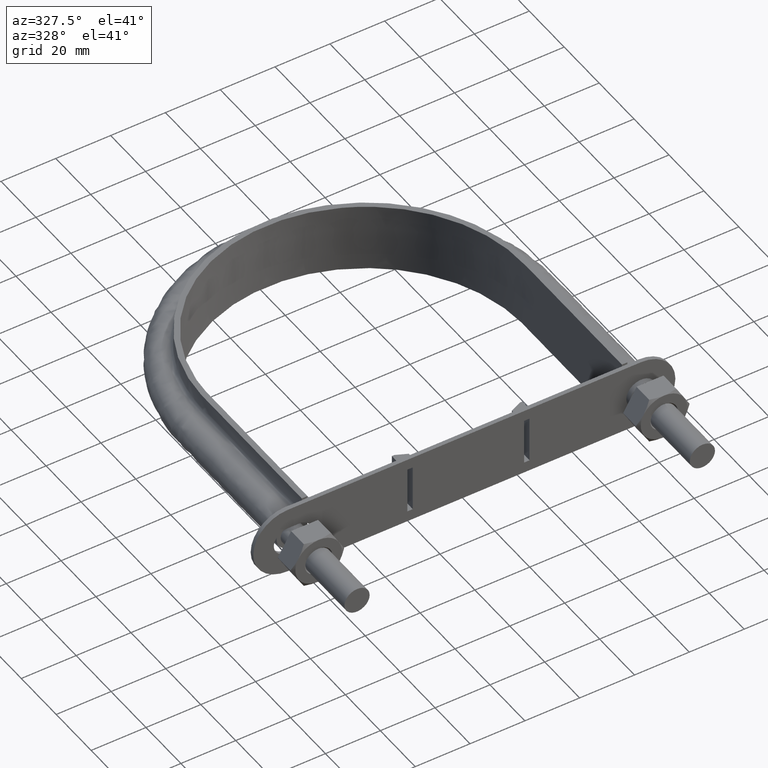
[diagram: clean part render]
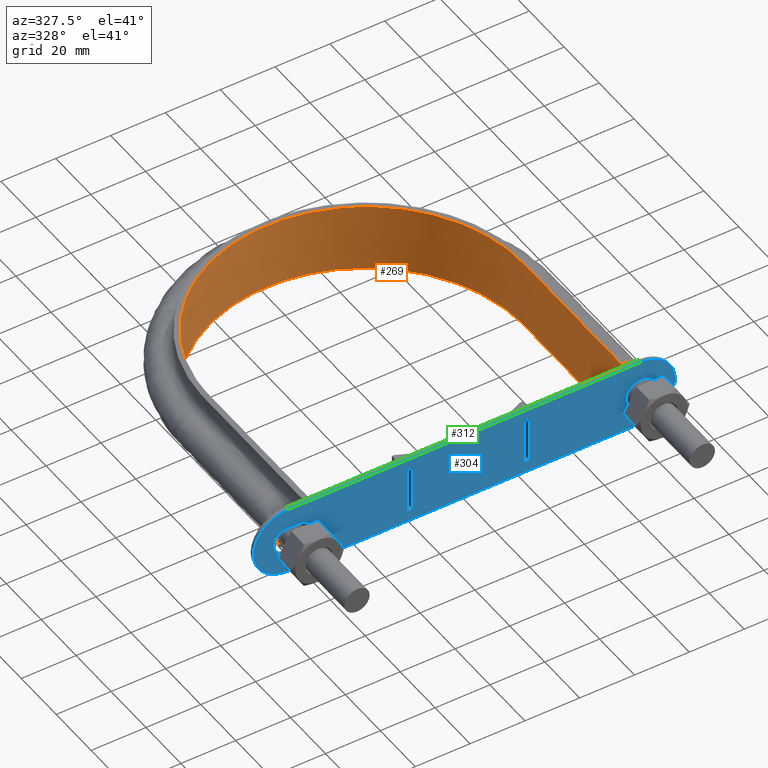
[diagram: same view with three faces highlighted in distinct colors, each labeled with its STEP entity id]
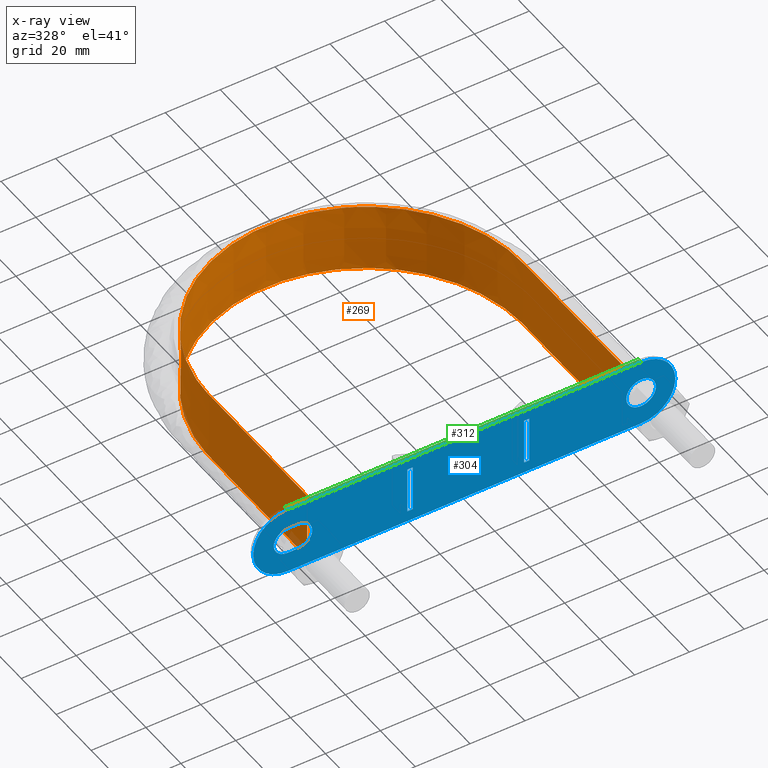
[diagram: x-ray of the same camera — body ghosted, the three highlighted faces saturated]
A machine part, auxiliary view with three faces highlighted in distinct colors.
The next image is the same camera in x-ray (body ghosted, the three faces saturated) — at least one of them is partly hidden behind the body in this view.
Their STEP definitions:

[orange] entity #269 — the highlighted face is a SurfaceOfExtrusion surface.
#269 = ADVANCED_FACE( '', ( #384 ), #385, .T. );
#384 = FACE_OUTER_BOUND( '', #636, .T. );
#385 = SURFACE_OF_LINEAR_EXTRUSION( '', #637, #638 );
#636 = EDGE_LOOP( '', ( #1553, #1554, #1555, #1556 ) );
#637 = B_SPLINE_CURVE_WITH_KNOTS( '', 3, ( #1557, #1558, #1559, #1560, #1561, #1562, #1563, #1564, #1565, #1566, #1567, #1568, #1569, #1570, #1571, #1572 ), .UNSPECIFIED., .F., .F., ( 4, 3, 1, 1, 1, 1, 1, 1, 3, 4 ), ( -8.93693843594010, -8.00000000000000, -7.00000000000000, -6.00000000000000, -5.00000000000000, -4.00000000000000, -3.00000000000000, -2.00000000000000, -1.00000000000000, -0.0630615640599001 ), .UNSPECIFIED. );
#638 = VECTOR( '', #1573, 1000.00000000000 );
#1553 = ORIENTED_EDGE( '', *, *, #2359, .T. );
#1554 = ORIENTED_EDGE( '', *, *, #2367, .T. );
#1555 = ORIENTED_EDGE( '', *, *, #2364, .F. );
#1556 = ORIENTED_EDGE( '', *, *, #2368, .T. );
#1557 = CARTESIAN_POINT( '', ( 57.4000000000000, 37.3000000000000, 12.5000100000910 ) );
#1558 = CARTESIAN_POINT( '', ( 57.4000000000000, 56.0700000000000, 12.5000100000910 ) );
#1559 = CARTESIAN_POINT( '', ( 57.4000000000000, 74.8399999999999, 12.5000100000910 ) );
#1560 = CARTESIAN_POINT( '', ( 57.4000000000000, 93.6100000000000, 12.5000100000910 ) );
#1561 = CARTESIAN_POINT( '', ( 57.4000000000000, 102.180493203978, 12.5000100000910 ) );
#1562 = CARTESIAN_POINT( '', ( 53.4810424094545, 119.371852668646, 12.5000100000910 ) );
#1563 = CARTESIAN_POINT( '', ( 37.0100296725023, 140.017335605858, 12.5000100000910 ) );
#1564 = CARTESIAN_POINT( '', ( 13.2087266606841, 151.481567469912, 12.5000100000910 ) );
#1565 = CARTESIAN_POINT( '', ( -13.2087266606841, 151.481567469912, 12.5000100000910 ) );
#1566 = CARTESIAN_POINT( '', ( -37.0100296725023, 140.017335605858, 12.5000100000910 ) );
#1567 = CARTESIAN_POINT( '', ( -53.4810424094545, 119.371852668646, 12.5000100000910 ) );
#1568 = CARTESIAN_POINT( '', ( -57.4000000000000, 102.180493203978, 12.5000100000910 ) );
#1569 = CARTESIAN_POINT( '', ( -57.4000000000000, 93.6100000000000, 12.5000100000910 ) );
#1570 = CARTESIAN_POINT( '', ( -57.4000000000000, 74.8400000000000, 12.5000100000910 ) );
#1571 = CARTESIAN_POINT( '', ( -57.4000000000000, 56.0700000000000, 12.5000100000910 ) );
#1572 = CARTESIAN_POINT( '', ( -57.4000000000000, 37.3000000000000, 12.5000100000910 ) );
#1573 = DIRECTION( '', ( 0.000000000000000, 0.000000000000000, -1.00000000000000 ) );
#2359 = EDGE_CURVE( '', #2597, #2598, #2599, .T. );
#2364 = EDGE_CURVE( '', #2605, #2608, #2609, .T. );
#2367 = EDGE_CURVE( '', #2598, #2608, #2613, .F. );
#2368 = EDGE_CURVE( '', #2605, #2597, #2614, .T. );
#2597 = VERTEX_POINT( '', #2991 );
#2598 = VERTEX_POINT( '', #2992 );
#2599 = LINE( '', #2993, #2994 );
#2605 = VERTEX_POINT( '', #3032 );
#2608 = VERTEX_POINT( '', #3036 );
#2609 = LINE( '', #3037, #3038 );
#2613 = B_SPLINE_CURVE_WITH_KNOTS( '', 3, ( #3073, #3074, #3075, #3076, #3077, #3078, #3079, #3080, #3081, #3082, #3083, #3084, #3085, #3086, #3087, #3088 ), .UNSPECIFIED., .F., .F., ( 4, 3, 1, 1, 1, 1, 1, 1, 3, 4 ), ( -8.93693843594010, -8.00000000000000, -7.00000000000000, -6.00000000000000, -5.00000000000000, -4.00000000000000, -3.00000000000000, -2.00000000000000, -1.00000000000000, -0.0630615640599001 ), .UNSPECIFIED. );
#2614 = B_SPLINE_CURVE_WITH_KNOTS( '', 3, ( #3089, #3090, #3091, #3092, #3093, #3094, #3095, #3096, #3097, #3098, #3099, #3100, #3101, #3102, #3103, #3104, #3105, #3106, #3107, #3108, #3109, #3110, #3111, #3112, #3113, #3114, #3115, #3116, #3117, #3118, #3119, #3120, #3121, #3122, #3123, #3124, #3125, #3126, #3127, #3128, #3129, #3130, #3131, #3132, #3133, #3134, #3135, #3136, #3137, #3138, #3139, #3140, #3141, #3142, #3143, #3144, #3145, #3146, #3147, #3148, #3149, #3150, #3151, #3152, #3153, #3154, #3155, #3156, #3157, #3158, #3159, #3160, #3161, #3162, #3163, #3164, #3165, #3166, #3167, #3168, #3169, #3170, #3171, #3172, #3173, #3174, #3175, #3176 ), .UNSPECIFIED., .F., .F., ( 4, 1, 2, 2, 2, 2, 2, 2, 2, 2, 2, 2, 2, 2, 2, 2, 2, 2, 2, 2, 2, 2, 2, 2, 2, 2, 2, 2, 2, 2, 2, 2, 2, 2, 2, 2, 2, 2, 2, 2, 2, 2, 2, 1, 4 ), ( 6.93889390390723E-018, 0.0368006591004078, 0.0552009886506117, 0.0575010298443872, 0.0598010710381627, 0.0644011534257136, 0.0736013182008154, 0.0782014005883663, 0.0805014417821417, 0.0828014829759172, 0.0920016477510191, 0.0966017301385700, 0.0989017713323454, 0.101201812526121, 0.110401977301223, 0.115002059688774, 0.117302100882549, 0.119602142076324, 0.128802306851426, 0.133402389238977, 0.135702430432752, 0.138002471626528, 0.147202636401630, 0.156402801176731, 0.158702842370507, 0.161002883564282, 0.165602965951833, 0.174803130726935, 0.177103171920710, 0.179403213114486, 0.184003295502037, 0.193203460277138, 0.195503501470914, 0.197803542664689, 0.202403625052240, 0.211603789827342, 0.213903831021117, 0.216203872214893, 0.220803954602443, 0.230004119377545, 0.234604201765096, 0.236904242958871, 0.239204284152646, 0.257604613702849, 0.294405272803255 ), .UNSPECIFIED. );
#2991 = CARTESIAN_POINT( '', ( -57.4000000000000, 37.3000000000000, 12.5000000000000 ) );
#2992 = CARTESIAN_POINT( '', ( -57.4000000000000, 37.3000000000000, -12.5000000000000 ) );
#2993 = CARTESIAN_POINT( '', ( -57.4000000000000, 37.3000000000000, 12.5000100000910 ) );
#2994 = VECTOR( '', #3869, 1000.00000000000 );
#3032 = CARTESIAN_POINT( '', ( 57.4000000000000, 37.3000000000000, 12.5000000000000 ) );
#3036 = CARTESIAN_POINT( '', ( 57.4000000000000, 37.3000000000000, -12.5000000000000 ) );
#3037 = CARTESIAN_POINT( '', ( 57.4000000000000, 37.3000000000000, 12.5000100000910 ) );
#3038 = VECTOR( '', #3873, 1000.00000000000 );
#3073 = CARTESIAN_POINT( '', ( 57.4000000000000, 37.3000000000000, -12.5000000000000 ) );
#3074 = CARTESIAN_POINT( '', ( 57.4000000000000, 56.0700000000000, -12.5000000000000 ) );
#3075 = CARTESIAN_POINT( '', ( 57.4000000000000, 74.8399999999999, -12.5000000000000 ) );
#3076 = CARTESIAN_POINT( '', ( 57.4000000000000, 93.6100000000000, -12.5000000000000 ) );
#3077 = CARTESIAN_POINT( '', ( 57.4000000000000, 102.180493203978, -12.5000000000000 ) );
#3078 = CARTESIAN_POINT( '', ( 53.4810424094545, 119.371852668646, -12.5000000000000 ) );
#3079 = CARTESIAN_POINT( '', ( 37.0100296725023, 140.017335605858, -12.5000000000000 ) );
#3080 = CARTESIAN_POINT( '', ( 13.2087266606841, 151.481567469912, -12.5000000000000 ) );
#3081 = CARTESIAN_POINT( '', ( -13.2087266606841, 151.481567469912, -12.5000000000000 ) );
#3082 = CARTESIAN_POINT( '', ( -37.0100296725023, 140.017335605858, -12.5000000000000 ) );
#3083 = CARTESIAN_POINT( '', ( -53.4810424094545, 119.371852668646, -12.5000000000000 ) );
#3084 = CARTESIAN_POINT( '', ( -57.4000000000000, 102.180493203978, -12.5000000000000 ) );
#3085 = CARTESIAN_POINT( '', ( -57.4000000000000, 93.6100000000000, -12.5000000000000 ) );
#3086 = CARTESIAN_POINT( '', ( -57.4000000000000, 74.8400000000000, -12.5000000000000 ) );
#3087 = CARTESIAN_POINT( '', ( -57.4000000000000, 56.0700000000000, -12.5000000000000 ) );
#3088 = CARTESIAN_POINT( '', ( -57.4000000000000, 37.3000000000000, -12.5000000000000 ) );
#3089 = CARTESIAN_POINT( '', ( 57.4000000000000, 37.3000000000000, 12.5000000000000 ) );
#3090 = CARTESIAN_POINT( '', ( 57.4000000000000, 49.5668971504807, 12.5000000000000 ) );
#3091 = CARTESIAN_POINT( '', ( 57.3999999999999, 67.9672428762017, 12.5000000000000 ) );
#3092 = CARTESIAN_POINT( '', ( 57.4000000000000, 86.3675886019228, 12.5000000000000 ) );
#3093 = CARTESIAN_POINT( '', ( 57.4000000000000, 93.2677182490682, 12.5000000000000 ) );
#3094 = CARTESIAN_POINT( '', ( 57.4036066457801, 94.0344041032519, 12.5000000000000 ) );
#3095 = CARTESIAN_POINT( '', ( 57.3712056389476, 95.5677232845277, 12.5000000000000 ) );
#3096 = CARTESIAN_POINT( '', ( 57.3393359788147, 96.3353753045869, 12.5000000000000 ) );
#3097 = CARTESIAN_POINT( '', ( 57.1976234100830, 98.6306634699641, 12.5000000000000 ) );
#3098 = CARTESIAN_POINT( '', ( 57.0421967518527, 100.147180453960, 12.5000000000000 ) );
#3099 = CARTESIAN_POINT( '', ( 56.4004013757545, 104.657352705709, 12.5000000000000 ) );
#3100 = CARTESIAN_POINT( '', ( 55.7399883057787, 107.611959318388, 12.5000000000000 ) );
#3101 = CARTESIAN_POINT( '', ( 54.4013047063944, 111.965777471156, 12.5000000000000 ) );
#3102 = CARTESIAN_POINT( '', ( 53.8966972928596, 113.403952132018, 12.5000000000000 ) );
#3103 = CARTESIAN_POINT( '', ( 53.0487681131459, 115.540793277909, 12.5000000000000 ) );
#3104 = CARTESIAN_POINT( '', ( 52.7511260023257, 116.248939019186, 12.5000000000000 ) );
#3105 = CARTESIAN_POINT( '', ( 52.1306487491250, 117.645579267383, 12.5000000000000 ) );
#3106 = CARTESIAN_POINT( '', ( 51.8071932048134, 118.335643312284, 12.5000000000000 ) );
#3107 = CARTESIAN_POINT( '', ( 50.1243560027938, 121.745011154793, 12.5000000000000 ) );
#3108 = CARTESIAN_POINT( '', ( 48.5704537429598, 124.342805722192, 12.5000000000000 ) );
#3109 = CARTESIAN_POINT( '', ( 45.9378759805746, 128.051022440817, 12.5000000000000 ) );
#3110 = CARTESIAN_POINT( '', ( 45.0097482486539, 129.255485755391, 12.5000000000000 ) );
#3111 = CARTESIAN_POINT( '', ( 43.5399840512469, 131.013724230868, 12.5000000000000 ) );
#3112 = CARTESIAN_POINT( '', ( 43.0360401908087, 131.592882580464, 12.5000000000000 ) );
#3113 = CARTESIAN_POINT( '', ( 42.0071679355061, 132.728730541199, 12.5000000000000 ) );
#3114 = CARTESIAN_POINT( '', ( 41.4830799771193, 133.284602734684, 12.5000000000000 ) );
#3115 = CARTESIAN_POINT( '', ( 38.8150256208344, 136.004509636062, 12.5000000000000 ) );
#3116 = CARTESIAN_POINT( '', ( 36.5289375337687, 137.991083678086, 12.5000000000000 ) );
#3117 = CARTESIAN_POINT( '', ( 32.8725465474706, 140.687177301449, 12.5000000000000 ) );
#3118 = CARTESIAN_POINT( '', ( 31.6159998625506, 141.538738914915, 12.5000000000000 ) );
#3119 = CARTESIAN_POINT( '', ( 29.6741600235064, 142.744883379300, 12.5000000000000 ) );
#3120 = CARTESIAN_POINT( '', ( 29.0173621705765, 143.135046972002, 12.5000000000000 ) );
#3121 = CARTESIAN_POINT( '', ( 27.6844813094559, 143.891293691475, 12.5000000000000 ) );
#3122 = CARTESIAN_POINT( '', ( 27.0092860879620, 144.256786401143, 12.5000000000000 ) );
#3123 = CARTESIAN_POINT( '', ( 23.6148955512580, 146.008321558919, 12.5000000000000 ) );
#3124 = CARTESIAN_POINT( '', ( 20.8188839208597, 147.181221130253, 12.5000000000000 ) );
#3125 = CARTESIAN_POINT( '', ( 16.5063575914378, 148.604430974850, 12.5000000000000 ) );
#3126 = CARTESIAN_POINT( '', ( 15.0489724833801, 149.022456876127, 12.5000000000000 ) );
#3127 = CARTESIAN_POINT( '', ( 12.8322199583375, 149.562489310091, 12.5000000000000 ) );
#3128 = CARTESIAN_POINT( '', ( 12.0881682606315, 149.727937467103, 12.5000000000000 ) );
#3129 = CARTESIAN_POINT( '', ( 10.5896803128533, 150.029378956679, 12.5000000000000 ) );
#3130 = CARTESIAN_POINT( '', ( 9.83354107507632, 150.165648447287, 12.5000000000000 ) );
#3131 = CARTESIAN_POINT( '', ( 6.05033946504659, 150.768951449387, 12.5000000000000 ) );
#3132 = CARTESIAN_POINT( '', ( 3.02331961872741, 151.004107282322, 12.5000000000000 ) );
#3133 = CARTESIAN_POINT( '', ( -3.03159229771714, 151.003674706656, 12.5000000000000 ) );
#3134 = CARTESIAN_POINT( '', ( -6.05948435362853, 150.768093969407, 12.5000000000000 ) );
#3135 = CARTESIAN_POINT( '', ( -9.84492369258710, 150.163681704028, 12.5000000000000 ) );
#3136 = CARTESIAN_POINT( '', ( -10.6002721762768, 150.027389123451, 12.5000000000000 ) );
#3137 = CARTESIAN_POINT( '', ( -12.0978185021848, 149.725853405146, 12.5000000000000 ) );
#3138 = CARTESIAN_POINT( '', ( -12.8414452252184, 149.560367013092, 12.5000000000000 ) );
#3139 = CARTESIAN_POINT( '', ( -15.0570550081489, 149.020235378931, 12.5000000000000 ) );
#3140 = CARTESIAN_POINT( '', ( -16.5138535706967, 148.602163316093, 12.5000000000000 ) );
#3141 = CARTESIAN_POINT( '', ( -20.8250913381980, 147.178758755140, 12.5000000000000 ) );
#3142 = CARTESIAN_POINT( '', ( -23.6208691240754, 146.005657850112, 12.5000000000000 ) );
#3143 = CARTESIAN_POINT( '', ( -27.0156329102763, 144.253406103617, 12.5000000000000 ) );
#3144 = CARTESIAN_POINT( '', ( -27.6910147520963, 143.887696886022, 12.5000000000000 ) );
#3145 = CARTESIAN_POINT( '', ( -29.0234575114926, 143.131477440111, 12.5000000000000 ) );
#3146 = CARTESIAN_POINT( '', ( -29.6800585802789, 142.741324040592, 12.5000000000000 ) );
#3147 = CARTESIAN_POINT( '', ( -31.6213689725300, 141.535193660409, 12.5000000000000 ) );
#3148 = CARTESIAN_POINT( '', ( -32.8776437603807, 140.683619457022, 12.5000000000000 ) );
#3149 = CARTESIAN_POINT( '', ( -36.5334220827475, 137.987374398227, 12.5000000000000 ) );
#3150 = CARTESIAN_POINT( '', ( -38.8193751731555, 136.000549631674, 12.5000000000000 ) );
#3151 = CARTESIAN_POINT( '', ( -41.4874843976751, 133.279993585617, 12.5000000000000 ) );
#3152 = CARTESIAN_POINT( '', ( -42.0115944312470, 132.723974530570, 12.5000000000000 ) );
#3153 = CARTESIAN_POINT( '', ( -43.0405299781914, 131.587794110931, 12.5000000000000 ) );
#3154 = CARTESIAN_POINT( '', ( -43.5442393747026, 131.008765306377, 12.5000000000000 ) );
#3155 = CARTESIAN_POINT( '', ( -45.0135877457228, 129.250627800788, 12.5000000000000 ) );
#3156 = CARTESIAN_POINT( '', ( -45.9415210243652, 128.046162448528, 12.5000000000000 ) );
#3157 = CARTESIAN_POINT( '', ( -48.5736917716305, 124.337694282144, 12.5000000000000 ) );
#3158 = CARTESIAN_POINT( '', ( -50.1275589688898, 121.739408642437, 12.5000000000000 ) );
#3159 = CARTESIAN_POINT( '', ( -51.8104283189419, 118.328866111214, 12.5000000000000 ) );
#3160 = CARTESIAN_POINT( '', ( -52.1338941649286, 117.638538815899, 12.5000000000000 ) );
#3161 = CARTESIAN_POINT( '', ( -52.7543954652597, 116.241312252746, 12.5000000000000 ) );
#3162 = CARTESIAN_POINT( '', ( -53.0520667494114, 115.532782600104, 12.5000000000000 ) );
#3163 = CARTESIAN_POINT( '', ( -53.8993605656226, 113.396631283103, 12.5000000000000 ) );
#3164 = CARTESIAN_POINT( '', ( -54.4036525659498, 111.958777453083, 12.5000000000000 ) );
#3165 = CARTESIAN_POINT( '', ( -55.7415838846628, 107.605493588584, 12.5000000000000 ) );
#3166 = CARTESIAN_POINT( '', ( -56.4017548199479, 104.650676383386, 12.5000000000000 ) );
#3167 = CARTESIAN_POINT( '', ( -57.0431251208450, 100.139233624254, 12.5000000000000 ) );
#3168 = CARTESIAN_POINT( '', ( -57.1984001624354, 98.6221331309984, 12.5000000000000 ) );
#3169 = CARTESIAN_POINT( '', ( -57.3398068241163, 96.3257053568890, 12.5000000000000 ) );
#3170 = CARTESIAN_POINT( '', ( -57.3715266179354, 95.5584033825671, 12.5000000000000 ) );
#3171 = CARTESIAN_POINT( '', ( -57.4036727794918, 94.0253337577368, 12.5000000000000 ) );
#3172 = CARTESIAN_POINT( '', ( -57.4000000000000, 93.2587698558454, 12.5000000000000 ) );
#3173 = CARTESIAN_POINT( '', ( -57.4000000000000, 86.3597434352617, 12.5000000000000 ) );
#3174 = CARTESIAN_POINT( '', ( -57.4000000000000, 67.9623396470387, 12.5000000000000 ) );
#3175 = CARTESIAN_POINT( '', ( -57.4000000000000, 49.5649358588155, 12.5000000000000 ) );
#3176 = CARTESIAN_POINT( '', ( -57.4000000000000, 37.3000000000000, 12.5000000000000 ) );
#3869 = DIRECTION( '', ( 0.000000000000000, 0.000000000000000, -1.00000000000000 ) );
#3873 = DIRECTION( '', ( 0.000000000000000, 0.000000000000000, -1.00000000000000 ) );

[blue] entity #304 — the highlighted planar face has unit normal (0, 1, 0).
#304 = ADVANCED_FACE( '', ( #465, #466, #467, #468, #469 ), #470, .F. );
#465 = FACE_BOUND( '', #1372, .T. );
#466 = FACE_BOUND( '', #1373, .T. );
#467 = FACE_OUTER_BOUND( '', #1374, .T. );
#468 = FACE_BOUND( '', #1375, .T. );
#469 = FACE_BOUND( '', #1376, .T. );
#470 = PLANE( '', #1377 );
#1372 = EDGE_LOOP( '', ( #1797, #1798, #1799, #1800 ) );
#1373 = EDGE_LOOP( '', ( #1801, #1802, #1803, #1804 ) );
#1374 = EDGE_LOOP( '', ( #1805, #1806, #1807, #1808, #1809, #1810 ) );
#1375 = EDGE_LOOP( '', ( #1811 ) );
#1376 = EDGE_LOOP( '', ( #1812, #1813, #1814, #1815 ) );
#1377 = AXIS2_PLACEMENT_3D( '', #1816, #1817, #1818 );
#1797 = ORIENTED_EDGE( '', *, *, #2430, .F. );
#1798 = ORIENTED_EDGE( '', *, *, #2443, .T. );
#1799 = ORIENTED_EDGE( '', *, *, #2444, .T. );
#1800 = ORIENTED_EDGE( '', *, *, #2434, .F. );
#1801 = ORIENTED_EDGE( '', *, *, #2445, .F. );
#1802 = ORIENTED_EDGE( '', *, *, #2446, .F. );
#1803 = ORIENTED_EDGE( '', *, *, #2447, .T. );
#1804 = ORIENTED_EDGE( '', *, *, #2448, .T. );
#1805 = ORIENTED_EDGE( '', *, *, #2425, .F. );
#1806 = ORIENTED_EDGE( '', *, *, #2449, .F. );
#1807 = ORIENTED_EDGE( '', *, *, #2450, .F. );
#1808 = ORIENTED_EDGE( '', *, *, #2451, .F. );
#1809 = ORIENTED_EDGE( '', *, *, #2452, .F. );
#1810 = ORIENTED_EDGE( '', *, *, #2453, .F. );
#1811 = ORIENTED_EDGE( '', *, *, #2454, .T. );
#1812 = ORIENTED_EDGE( '', *, *, #2440, .F. );
#1813 = ORIENTED_EDGE( '', *, *, #2442, .F. );
#1814 = ORIENTED_EDGE( '', *, *, #2455, .F. );
#1815 = ORIENTED_EDGE( '', *, *, #2437, .F. );
#1816 = CARTESIAN_POINT( '', ( -66.0000000000000, 35.1000000000000, 6.64906155238804E-010 ) );
#1817 = DIRECTION( '', ( 2.51087312473002E-018, 1.00000000000000, 5.34725563500670E-016 ) );
#1818 = DIRECTION( '', ( 1.00743302589043E-011, -5.34725563500696E-016, 1.00000000000000 ) );
#2425 = EDGE_CURVE( '', #2709, #2711, #2712, .T. );
#2430 = EDGE_CURVE( '', #2719, #2715, #2721, .T. );
#2434 = EDGE_CURVE( '', #2715, #2727, #2728, .T. );
#2437 = EDGE_CURVE( '', #2730, #2732, #2733, .T. );
#2440 = EDGE_CURVE( '', #2735, #2730, #2737, .T. );
#2442 = EDGE_CURVE( '', #2738, #2735, #2740, .T. );
#2443 = EDGE_CURVE( '', #2719, #2741, #2742, .T. );
#2444 = EDGE_CURVE( '', #2741, #2727, #2743, .T. );
#2445 = EDGE_CURVE( '', #2744, #2745, #2746, .T. );
#2446 = EDGE_CURVE( '', #2747, #2744, #2748, .T. );
#2447 = EDGE_CURVE( '', #2747, #2749, #2750, .T. );
#2448 = EDGE_CURVE( '', #2749, #2745, #2751, .T. );
#2449 = EDGE_CURVE( '', #2752, #2709, #2753, .T. );
#2450 = EDGE_CURVE( '', #2754, #2752, #2755, .T. );
#2451 = EDGE_CURVE( '', #2756, #2754, #2757, .T. );
#2452 = EDGE_CURVE( '', #2758, #2756, #2759, .T. );
#2453 = EDGE_CURVE( '', #2711, #2758, #2760, .T. );
#2454 = EDGE_CURVE( '', #2761, #2761, #2762, .T. );
#2455 = EDGE_CURVE( '', #2732, #2738, #2763, .T. );
#2709 = VERTEX_POINT( '', #3355 );
#2711 = VERTEX_POINT( '', #3358 );
#2712 = CIRCLE( '', #3359, 12.5000000000000 );
#2715 = VERTEX_POINT( '', #3363 );
#2719 = VERTEX_POINT( '', #3369 );
#2721 = LINE( '', #3372, #3373 );
#2727 = VERTEX_POINT( '', #3382 );
#2728 = LINE( '', #3383, #3384 );
#2730 = VERTEX_POINT( '', #3387 );
#2732 = VERTEX_POINT( '', #3390 );
#2733 = LINE( '', #3391, #3392 );
#2735 = VERTEX_POINT( '', #3395 );
#2737 = CIRCLE( '', #3398, 5.00000000000000 );
#2738 = VERTEX_POINT( '', #3399 );
#2740 = LINE( '', #3402, #3403 );
#2741 = VERTEX_POINT( '', #3404 );
#2742 = LINE( '', #3405, #3406 );
#2743 = LINE( '', #3407, #3408 );
#2744 = VERTEX_POINT( '', #3409 );
#2745 = VERTEX_POINT( '', #3410 );
#2746 = LINE( '', #3411, #3412 );
#2747 = VERTEX_POINT( '', #3413 );
#2748 = LINE( '', #3414, #3415 );
#2749 = VERTEX_POINT( '', #3416 );
#2750 = LINE( '', #3417, #3418 );
#2751 = LINE( '', #3419, #3420 );
#2752 = VERTEX_POINT( '', #3421 );
#2753 = CIRCLE( '', #3422, 12.5000000000000 );
#2754 = VERTEX_POINT( '', #3423 );
#2755 = LINE( '', #3424, #3425 );
#2756 = VERTEX_POINT( '', #3426 );
#2757 = CIRCLE( '', #3427, 12.5000000000000 );
#2758 = VERTEX_POINT( '', #3428 );
#2759 = CIRCLE( '', #3429, 12.5000000000000 );
#2760 = LINE( '', #3430, #3431 );
#2761 = VERTEX_POINT( '', #3432 );
#2762 = CIRCLE( '', #3433, 5.40000000000000 );
#2763 = CIRCLE( '', #3434, 5.00000000000000 );
#3355 = CARTESIAN_POINT( '', ( -78.5000000000000, 35.1000000000000, 7.90838752922060E-010 ) );
#3358 = CARTESIAN_POINT( '', ( -65.9999999998741, 35.1000000000000, 12.5000000006649 ) );
#3359 = AXIS2_PLACEMENT_3D( '', #3969, #3970, #3971 );
#3363 = CARTESIAN_POINT( '', ( 22.3000000000856, 35.1000000000000, 8.49999999977534 ) );
#3369 = CARTESIAN_POINT( '', ( 22.2999999999144, 35.1000000000000, -8.50000000022466 ) );
#3372 = CARTESIAN_POINT( '', ( 22.2999999999144, 35.1000000000000, -8.50000000022466 ) );
#3373 = VECTOR( '', #3976, 1000.00000000000 );
#3382 = CARTESIAN_POINT( '', ( 20.3000000000856, 35.1000000000000, 8.49999999979549 ) );
#3383 = CARTESIAN_POINT( '', ( 22.3000000000856, 35.1000000000000, 8.49999999977534 ) );
#3384 = VECTOR( '', #3980, 1000.00000000000 );
#3387 = CARTESIAN_POINT( '', ( -66.0000000000504, 35.0999984999318, -4.99999999933509 ) );
#3390 = CARTESIAN_POINT( '', ( -62.0000000000504, 35.0999984999318, -4.99999999937539 ) );
#3391 = CARTESIAN_POINT( '', ( -66.0000000000504, 35.0999984999318, -4.99999999933509 ) );
#3392 = VECTOR( '', #3983, 1000.00000000000 );
#3395 = CARTESIAN_POINT( '', ( -65.9999999999496, 35.0999984999318, 5.00000000066491 ) );
#3398 = AXIS2_PLACEMENT_3D( '', #3986, #3987, #3988 );
#3399 = CARTESIAN_POINT( '', ( -61.9999999999496, 35.0999984999318, 5.00000000062461 ) );
#3402 = CARTESIAN_POINT( '', ( -61.9999999999496, 35.0999984999318, 5.00000000062461 ) );
#3403 = VECTOR( '', #3990, 1000.00000000000 );
#3404 = CARTESIAN_POINT( '', ( 20.2999999999144, 35.1000000000000, -8.50000000020451 ) );
#3405 = CARTESIAN_POINT( '', ( 22.2999999999144, 35.1000000000000, -8.50000000022466 ) );
#3406 = VECTOR( '', #3991, 1000.00000000000 );
#3407 = CARTESIAN_POINT( '', ( 20.2999999999144, 35.1000000000000, -8.50000000020451 ) );
#3408 = VECTOR( '', #3992, 1000.00000000000 );
#3409 = CARTESIAN_POINT( '', ( -20.3000000000857, 35.1000000000000, -8.49999999979549 ) );
#3410 = CARTESIAN_POINT( '', ( -20.2999999999144, 35.1000000000000, 8.50000000020451 ) );
#3411 = CARTESIAN_POINT( '', ( -20.3000000000857, 35.1000000000000, -8.49999999979549 ) );
#3412 = VECTOR( '', #3993, 1000.00000000000 );
#3413 = CARTESIAN_POINT( '', ( -22.3000000000857, 35.1000000000000, -8.49999999977534 ) );
#3414 = CARTESIAN_POINT( '', ( -22.3000000000856, 35.1000000000000, -8.49999999977534 ) );
#3415 = VECTOR( '', #3994, 1000.00000000000 );
#3416 = CARTESIAN_POINT( '', ( -22.2999999999144, 35.1000000000000, 8.50000000022466 ) );
#3417 = CARTESIAN_POINT( '', ( -22.3000000000857, 35.1000000000000, -8.49999999977534 ) );
#3418 = VECTOR( '', #3995, 1000.00000000000 );
#3419 = CARTESIAN_POINT( '', ( -22.2999999999144, 35.1000000000000, 8.50000000022466 ) );
#3420 = VECTOR( '', #3996, 1000.00000000000 );
#3421 = CARTESIAN_POINT( '', ( -66.0000000001260, 35.1000000000000, -12.4999999993351 ) );
#3422 = AXIS2_PLACEMENT_3D( '', #3997, #3998, #3999 );
#3423 = CARTESIAN_POINT( '', ( 62.9999999998741, 35.1000000000000, -12.5000000006347 ) );
#3424 = CARTESIAN_POINT( '', ( 62.9999999998740, 35.1000000000000, -12.5000000006347 ) );
#3425 = VECTOR( '', #4000, 1000.00000000000 );
#3426 = CARTESIAN_POINT( '', ( 75.5000000000000, 35.1000000000000, -7.60611576396148E-010 ) );
#3427 = AXIS2_PLACEMENT_3D( '', #4001, #4002, #4003 );
#3428 = CARTESIAN_POINT( '', ( 63.0000000001259, 35.1000000000000, 12.4999999993653 ) );
#3429 = AXIS2_PLACEMENT_3D( '', #4004, #4005, #4006 );
#3430 = CARTESIAN_POINT( '', ( -65.9999999998741, 35.1000000000000, 12.5000000006649 ) );
#3431 = VECTOR( '', #4007, 1000.00000000000 );
#3432 = CARTESIAN_POINT( '', ( 68.4000000000000, 35.1000000000000, -6.89082096834452E-010 ) );
#3433 = AXIS2_PLACEMENT_3D( '', #4008, #4009, #4010 );
#3434 = AXIS2_PLACEMENT_3D( '', #4011, #4012, #4013 );
#3969 = CARTESIAN_POINT( '', ( -66.0000000000000, 35.1000000000000, 6.64906155238804E-010 ) );
#3970 = DIRECTION( '', ( 2.51087312473002E-018, 1.00000000000000, 5.34725563500670E-016 ) );
#3971 = DIRECTION( '', ( -1.00000000000000, 2.51087311934309E-018, 1.00741914810262E-011 ) );
#3976 = DIRECTION( '', ( 1.00742318675846E-011, -3.23724697550540E-016, 1.00000000000000 ) );
#3980 = DIRECTION( '', ( -1.00000000000000, 6.35333853940688E-017, 1.00743302589043E-011 ) );
#3983 = DIRECTION( '', ( 1.00000000000000, -2.51087311934302E-018, -1.00743302589043E-011 ) );
#3986 = CARTESIAN_POINT( '', ( -66.0000000000000, 35.0999984999318, 6.64907889961478E-010 ) );
#3987 = DIRECTION( '', ( -2.51087312473002E-018, -1.00000000000000, -5.34725563500670E-016 ) );
#3988 = DIRECTION( '', ( 1.00743302589043E-011, -5.34725563500696E-016, 1.00000000000000 ) );
#3990 = DIRECTION( '', ( -1.00000000000000, 2.51087311934302E-018, 1.00743302589043E-011 ) );
#3991 = DIRECTION( '', ( -1.00000000000000, 6.35333853940688E-017, 1.00743302589043E-011 ) );
#3992 = DIRECTION( '', ( 1.00742318675846E-011, -3.23724697550540E-016, 1.00000000000000 ) );
#3993 = DIRECTION( '', ( 1.00744286502239E-011, -3.23724697550540E-016, 1.00000000000000 ) );
#3994 = DIRECTION( '', ( 1.00000000000000, -6.39489962268549E-017, -1.00743302589043E-011 ) );
#3995 = DIRECTION( '', ( 1.00744286502239E-011, -3.23724697550540E-016, 1.00000000000000 ) );
#3996 = DIRECTION( '', ( 1.00000000000000, -6.39489962268549E-017, -1.00743302589043E-011 ) );
#3997 = CARTESIAN_POINT( '', ( -66.0000000000000, 35.1000000000000, 6.64909624685756E-010 ) );
#3998 = DIRECTION( '', ( 2.51087312473002E-018, 1.00000000000000, 5.34725563500670E-016 ) );
#3999 = DIRECTION( '', ( -1.00743302589043E-011, 5.34725563500696E-016, -1.00000000000000 ) );
#4000 = DIRECTION( '', ( -1.00000000000000, 2.51087311934302E-018, 1.00743302589043E-011 ) );
#4001 = CARTESIAN_POINT( '', ( 63.0000000000000, 35.1000000000000, -6.34678978712893E-010 ) );
#4002 = DIRECTION( '', ( 2.51087312473002E-018, 1.00000000000000, 5.34725563500670E-016 ) );
#4003 = DIRECTION( '', ( 1.00000000000000, -2.51087311934309E-018, -1.00741914810262E-011 ) );
#4004 = CARTESIAN_POINT( '', ( 63.0000000000000, 35.1000000000000, -6.34682448159845E-010 ) );
#4005 = DIRECTION( '', ( 2.51087312473002E-018, 1.00000000000000, 5.34725563500670E-016 ) );
#4006 = DIRECTION( '', ( 1.00743302589043E-011, -5.34725563500696E-016, 1.00000000000000 ) );
#4007 = DIRECTION( '', ( 1.00000000000000, -2.51087311934302E-018, -1.00743302589043E-011 ) );
#4008 = CARTESIAN_POINT( '', ( 63.0000000000000, 35.1000000000000, -6.34680713436369E-010 ) );
#4009 = DIRECTION( '', ( 2.51087312473002E-018, 1.00000000000000, 5.34725563500670E-016 ) );
#4010 = DIRECTION( '', ( 1.00000000000000, -2.51087311934302E-018, -1.00743302589043E-011 ) );
#4011 = CARTESIAN_POINT( '', ( -62.0000000000000, 35.0999984999318, 6.24610568925861E-010 ) );
#4012 = DIRECTION( '', ( -2.51087312473002E-018, -1.00000000000000, -5.34725563500670E-016 ) );
#4013 = DIRECTION( '', ( -1.00743302589043E-011, 5.34725563500696E-016, -1.00000000000000 ) );

[green] entity #312 — the highlighted planar face has unit normal (0, -0, 1).
#312 = ADVANCED_FACE( '', ( #486 ), #487, .T. );
#486 = FACE_OUTER_BOUND( '', #1393, .T. );
#487 = PLANE( '', #1394 );
#1393 = EDGE_LOOP( '', ( #1866, #1867, #1868, #1869 ) );
#1394 = AXIS2_PLACEMENT_3D( '', #1870, #1871, #1872 );
#1866 = ORIENTED_EDGE( '', *, *, #2410, .F. );
#1867 = ORIENTED_EDGE( '', *, *, #2426, .F. );
#1868 = ORIENTED_EDGE( '', *, *, #2453, .T. );
#1869 = ORIENTED_EDGE( '', *, *, #2463, .T. );
#1870 = CARTESIAN_POINT( '', ( -65.9999999998741, 35.1000000000000, 12.5000000006649 ) );
#1871 = DIRECTION( '', ( 1.00743302589043E-011, -5.34725563500696E-016, 1.00000000000000 ) );
#1872 = DIRECTION( '', ( -1.00000000000000, 2.51087311934302E-018, 1.00743302589043E-011 ) );
#2410 = EDGE_CURVE( '', #2680, #2682, #2683, .T. );
#2426 = EDGE_CURVE( '', #2711, #2680, #2713, .T. );
#2453 = EDGE_CURVE( '', #2711, #2758, #2760, .T. );
#2463 = EDGE_CURVE( '', #2758, #2682, #2774, .T. );
#2680 = VERTEX_POINT( '', #3318 );
#2682 = VERTEX_POINT( '', #3320 );
#2683 = LINE( '', #3321, #3322 );
#2711 = VERTEX_POINT( '', #3358 );
#2713 = LINE( '', #3360, #3361 );
#2758 = VERTEX_POINT( '', #3428 );
#2760 = LINE( '', #3430, #3431 );
#2774 = LINE( '', #3451, #3452 );
#3318 = CARTESIAN_POINT( '', ( -65.9999999998741, 36.6000000000000, 12.5000000006649 ) );
#3320 = CARTESIAN_POINT( '', ( 63.0000000001259, 36.6000000000000, 12.4999999993653 ) );
#3321 = CARTESIAN_POINT( '', ( -65.9999999998741, 36.6000000000000, 12.5000000006649 ) );
#3322 = VECTOR( '', #3942, 1000.00000000000 );
#3358 = CARTESIAN_POINT( '', ( -65.9999999998741, 35.1000000000000, 12.5000000006649 ) );
#3360 = CARTESIAN_POINT( '', ( -65.9999999998741, 35.1000000000000, 12.5000000006649 ) );
#3361 = VECTOR( '', #3972, 1000.00000000000 );
#3428 = CARTESIAN_POINT( '', ( 63.0000000001259, 35.1000000000000, 12.4999999993653 ) );
#3430 = CARTESIAN_POINT( '', ( -65.9999999998741, 35.1000000000000, 12.5000000006649 ) );
#3431 = VECTOR( '', #4007, 1000.00000000000 );
#3451 = CARTESIAN_POINT( '', ( 63.0000000001259, 35.1000000000000, 12.4999999993653 ) );
#3452 = VECTOR( '', #4023, 1000.00000000000 );
#3942 = DIRECTION( '', ( 1.00000000000000, -2.51087311934302E-018, -1.00743302589043E-011 ) );
#3972 = DIRECTION( '', ( 2.51087312473002E-018, 1.00000000000000, 5.34725563500670E-016 ) );
#4007 = DIRECTION( '', ( 1.00000000000000, -2.51087311934302E-018, -1.00743302589043E-011 ) );
#4023 = DIRECTION( '', ( 2.51087312473002E-018, 1.00000000000000, 5.34725563500670E-016 ) );